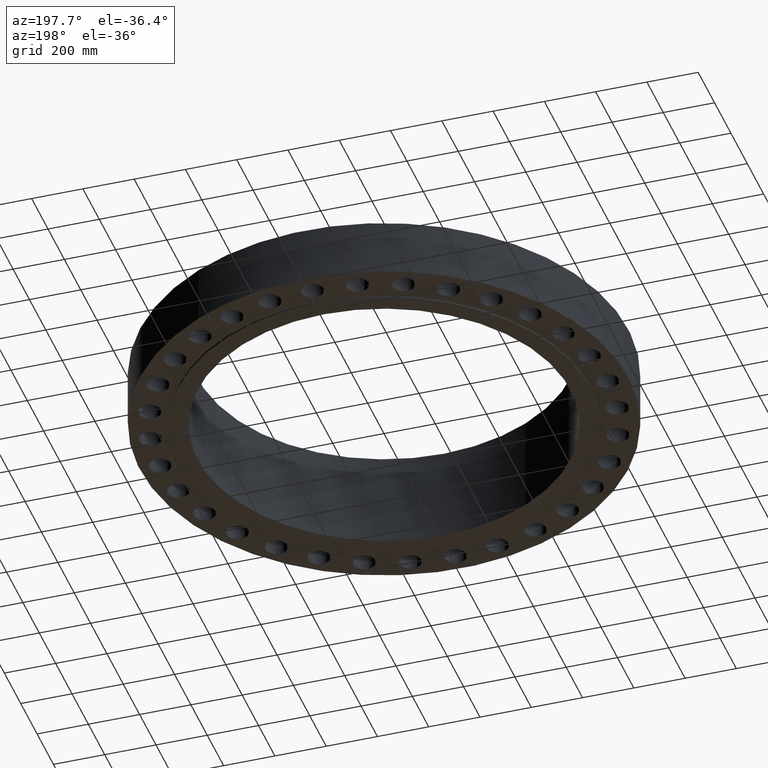
[diagram: clean part render]
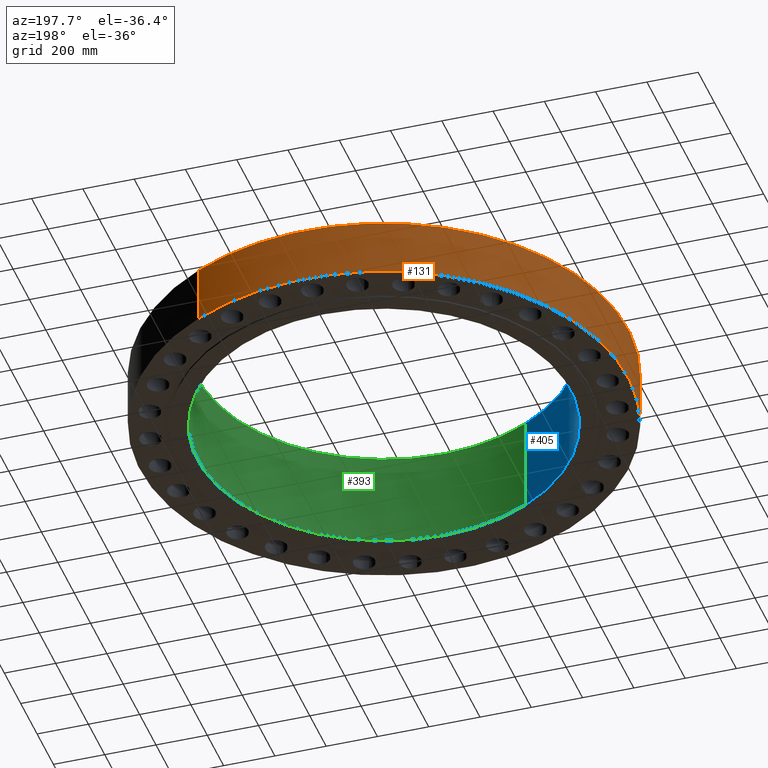
[diagram: same view with three faces highlighted in distinct colors, each labeled with its STEP entity id]
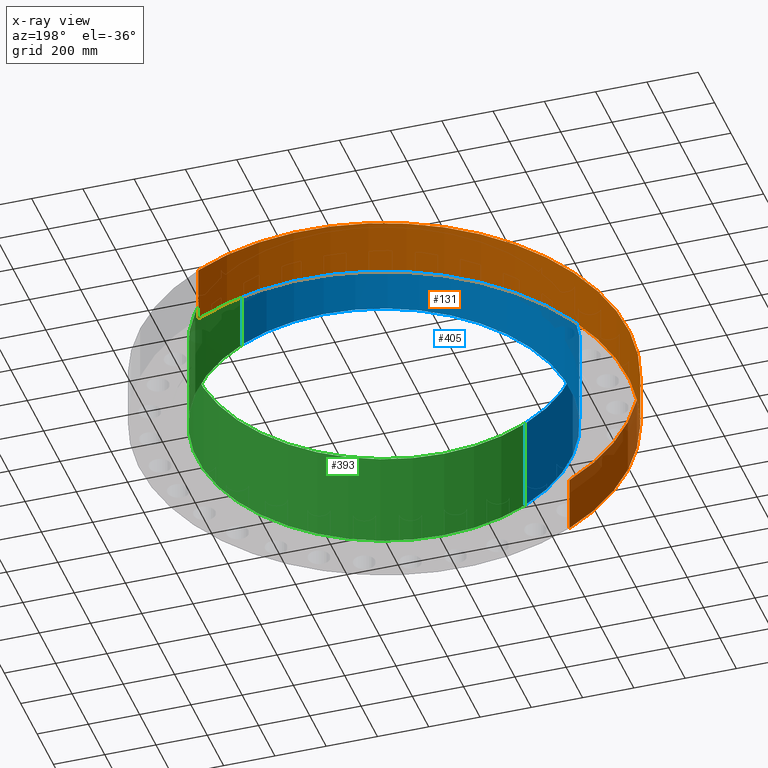
[diagram: x-ray of the same camera — body ghosted, the three highlighted faces saturated]
A machine part, auxiliary view with three faces highlighted in distinct colors.
The next image is the same camera in x-ray (body ghosted, the three faces saturated) — at least one of them is partly hidden behind the body in this view.
Their STEP definitions:

[orange] entity #131 — the highlighted cylindrical surface (partial cylindrical patch) has radius 952.5 mm, axis along (0, 0, -1).
#95=AXIS2_PLACEMENT_3D('Cylinder Axis2P3D',#92,#93,#94) ;
#99=AXIS2_PLACEMENT_3D('Circle Axis2P3D',#97,#98,$) ;
#115=AXIS2_PLACEMENT_3D('Circle Axis2P3D',#113,#114,$) ;
#92=CARTESIAN_POINT('Axis2P3D Location',(0.,0.,7.20500000003)) ;
#97=CARTESIAN_POINT('Axis2P3D Location',(0.,0.,4.47585975282E-015)) ;
#101=CARTESIAN_POINT('Vertex',(-17.9784576977,-32.909346071,4.47585975282E-015)) ;
#103=CARTESIAN_POINT('Vertex',(17.9784576977,32.909346071,4.47585975282E-015)) ;
#106=CARTESIAN_POINT('Line Origine',(-17.9784576977,-32.909346071,4.37500000002)) ;
#110=CARTESIAN_POINT('Vertex',(-17.9784576977,-32.909346071,8.75000000004)) ;
#113=CARTESIAN_POINT('Axis2P3D Location',(0.,0.,8.75000000004)) ;
#117=CARTESIAN_POINT('Vertex',(17.9784576977,32.909346071,8.75000000004)) ;
#120=CARTESIAN_POINT('Line Origine',(17.9784576977,32.909346071,4.37500000002)) ;
#93=DIRECTION('Axis2P3D Direction',(0.,0.,-0.0393700787402)) ;
#94=DIRECTION('Axis2P3D XDirection',(0.0188750212049,0.0345504945626,0.)) ;
#98=DIRECTION('Axis2P3D Direction',(0.,0.,-0.0393700787402)) ;
#107=DIRECTION('Vector Direction',(0.,0.,-0.0393700787402)) ;
#114=DIRECTION('Axis2P3D Direction',(0.,0.,-0.0393700787402)) ;
#121=DIRECTION('Vector Direction',(0.,0.,-0.0393700787402)) ;
#108=VECTOR('Line Direction',#107,0.0393700787402) ;
#122=VECTOR('Line Direction',#121,0.0393700787402) ;
#126=ORIENTED_EDGE('',*,*,#105,.F.) ;
#127=ORIENTED_EDGE('',*,*,#112,.T.) ;
#128=ORIENTED_EDGE('',*,*,#119,.T.) ;
#129=ORIENTED_EDGE('',*,*,#124,.F.) ;
#131=ADVANCED_FACE('PartBody',(#130),#96,.T.) ;
#100=CIRCLE('generated circle',#99,37.5000000002) ;
#116=CIRCLE('generated circle',#115,37.5000000002) ;
#96=CYLINDRICAL_SURFACE('generated cylinder',#95,37.5000000002) ;
#105=EDGE_CURVE('',#102,#104,#100,.T.) ;
#112=EDGE_CURVE('',#102,#111,#109,.F.) ;
#119=EDGE_CURVE('',#111,#118,#116,.T.) ;
#124=EDGE_CURVE('',#104,#118,#123,.F.) ;
#125=EDGE_LOOP('',(#126,#127,#128,#129)) ;
#130=FACE_OUTER_BOUND('',#125,.T.) ;
#109=LINE('Line',#106,#108) ;
#123=LINE('Line',#120,#122) ;
#102=VERTEX_POINT('',#101) ;
#104=VERTEX_POINT('',#103) ;
#111=VERTEX_POINT('',#110) ;
#118=VERTEX_POINT('',#117) ;

[blue] entity #405 — the highlighted cylindrical surface (partial cylindrical patch) has radius 727.075 mm, axis along (0, 0, -1).
#346=AXIS2_PLACEMENT_3D('Circle Axis2P3D',#344,#345,$) ;
#366=AXIS2_PLACEMENT_3D('Cylinder Axis2P3D',#363,#364,#365) ;
#396=AXIS2_PLACEMENT_3D('Circle Axis2P3D',#394,#395,$) ;
#344=CARTESIAN_POINT('Axis2P3D Location',(-1.1189649382E-014,-3.35689481461E-015,14.5600000001)) ;
#348=CARTESIAN_POINT('Vertex',(-13.7235560426,-25.1208008342,14.5600000001)) ;
#350=CARTESIAN_POINT('Vertex',(13.7235560426,25.1208008342,14.5600000001)) ;
#363=CARTESIAN_POINT('Axis2P3D Location',(0.,0.,7.20500000003)) ;
#368=CARTESIAN_POINT('Line Origine',(13.7235560426,25.1208008342,7.15500000003)) ;
#372=CARTESIAN_POINT('Vertex',(13.7235560426,25.1208008342,-0.250000000001)) ;
#379=CARTESIAN_POINT('Vertex',(-13.7235560426,-25.1208008342,-0.250000000001)) ;
#382=CARTESIAN_POINT('Line Origine',(-13.7235560426,-25.1208008342,7.15500000003)) ;
#394=CARTESIAN_POINT('Axis2P3D Location',(0.,0.,-0.250000000001)) ;
#345=DIRECTION('Axis2P3D Direction',(0.,-0.,-0.0393700787402)) ;
#364=DIRECTION('Axis2P3D Direction',(0.,0.,-0.0393700787402)) ;
#365=DIRECTION('Axis2P3D XDirection',(-0.0188750212049,-0.0345504945626,0.)) ;
#369=DIRECTION('Vector Direction',(0.,0.,-0.0393700787402)) ;
#383=DIRECTION('Vector Direction',(0.,0.,-0.0393700787402)) ;
#395=DIRECTION('Axis2P3D Direction',(0.,0.,-0.0393700787402)) ;
#370=VECTOR('Line Direction',#369,0.0393700787402) ;
#384=VECTOR('Line Direction',#383,0.0393700787402) ;
#400=ORIENTED_EDGE('',*,*,#386,.T.) ;
#401=ORIENTED_EDGE('',*,*,#398,.T.) ;
#402=ORIENTED_EDGE('',*,*,#374,.F.) ;
#403=ORIENTED_EDGE('',*,*,#352,.F.) ;
#405=ADVANCED_FACE('PartBody',(#404),#367,.F.) ;
#347=CIRCLE('generated circle',#346,28.6250000001) ;
#397=CIRCLE('generated circle',#396,28.6250000001) ;
#367=CYLINDRICAL_SURFACE('generated cylinder',#366,28.6250000001) ;
#352=EDGE_CURVE('',#349,#351,#347,.T.) ;
#374=EDGE_CURVE('',#351,#373,#371,.T.) ;
#386=EDGE_CURVE('',#349,#380,#385,.T.) ;
#398=EDGE_CURVE('',#380,#373,#397,.T.) ;
#399=EDGE_LOOP('',(#400,#401,#402,#403)) ;
#404=FACE_OUTER_BOUND('',#399,.T.) ;
#371=LINE('Line',#368,#370) ;
#385=LINE('Line',#382,#384) ;
#349=VERTEX_POINT('',#348) ;
#351=VERTEX_POINT('',#350) ;
#373=VERTEX_POINT('',#372) ;
#380=VERTEX_POINT('',#379) ;

[green] entity #393 — the highlighted cylindrical surface (partial cylindrical patch) has radius 727.075 mm, axis along (0, 0, -1).
#355=AXIS2_PLACEMENT_3D('Circle Axis2P3D',#353,#354,$) ;
#366=AXIS2_PLACEMENT_3D('Cylinder Axis2P3D',#363,#364,#365) ;
#377=AXIS2_PLACEMENT_3D('Circle Axis2P3D',#375,#376,$) ;
#348=CARTESIAN_POINT('Vertex',(-13.7235560426,-25.1208008342,14.5600000001)) ;
#350=CARTESIAN_POINT('Vertex',(13.7235560426,25.1208008342,14.5600000001)) ;
#353=CARTESIAN_POINT('Axis2P3D Location',(6.71378962923E-015,-1.1189649382E-015,14.5600000001)) ;
#363=CARTESIAN_POINT('Axis2P3D Location',(0.,0.,7.20500000003)) ;
#368=CARTESIAN_POINT('Line Origine',(13.7235560426,25.1208008342,7.15500000003)) ;
#372=CARTESIAN_POINT('Vertex',(13.7235560426,25.1208008342,-0.250000000001)) ;
#375=CARTESIAN_POINT('Axis2P3D Location',(0.,0.,-0.250000000001)) ;
#379=CARTESIAN_POINT('Vertex',(-13.7235560426,-25.1208008342,-0.250000000001)) ;
#382=CARTESIAN_POINT('Line Origine',(-13.7235560426,-25.1208008342,7.15500000003)) ;
#354=DIRECTION('Axis2P3D Direction',(0.,-0.,-0.0393700787402)) ;
#364=DIRECTION('Axis2P3D Direction',(0.,0.,-0.0393700787402)) ;
#365=DIRECTION('Axis2P3D XDirection',(-0.0188750212049,-0.0345504945626,0.)) ;
#369=DIRECTION('Vector Direction',(0.,0.,-0.0393700787402)) ;
#376=DIRECTION('Axis2P3D Direction',(0.,0.,-0.0393700787402)) ;
#383=DIRECTION('Vector Direction',(0.,0.,-0.0393700787402)) ;
#370=VECTOR('Line Direction',#369,0.0393700787402) ;
#384=VECTOR('Line Direction',#383,0.0393700787402) ;
#388=ORIENTED_EDGE('',*,*,#374,.T.) ;
#389=ORIENTED_EDGE('',*,*,#381,.T.) ;
#390=ORIENTED_EDGE('',*,*,#386,.F.) ;
#391=ORIENTED_EDGE('',*,*,#357,.F.) ;
#393=ADVANCED_FACE('PartBody',(#392),#367,.F.) ;
#356=CIRCLE('generated circle',#355,28.6250000001) ;
#378=CIRCLE('generated circle',#377,28.6250000001) ;
#367=CYLINDRICAL_SURFACE('generated cylinder',#366,28.6250000001) ;
#357=EDGE_CURVE('',#351,#349,#356,.T.) ;
#374=EDGE_CURVE('',#351,#373,#371,.T.) ;
#381=EDGE_CURVE('',#373,#380,#378,.T.) ;
#386=EDGE_CURVE('',#349,#380,#385,.T.) ;
#387=EDGE_LOOP('',(#388,#389,#390,#391)) ;
#392=FACE_OUTER_BOUND('',#387,.T.) ;
#371=LINE('Line',#368,#370) ;
#385=LINE('Line',#382,#384) ;
#349=VERTEX_POINT('',#348) ;
#351=VERTEX_POINT('',#350) ;
#373=VERTEX_POINT('',#372) ;
#380=VERTEX_POINT('',#379) ;